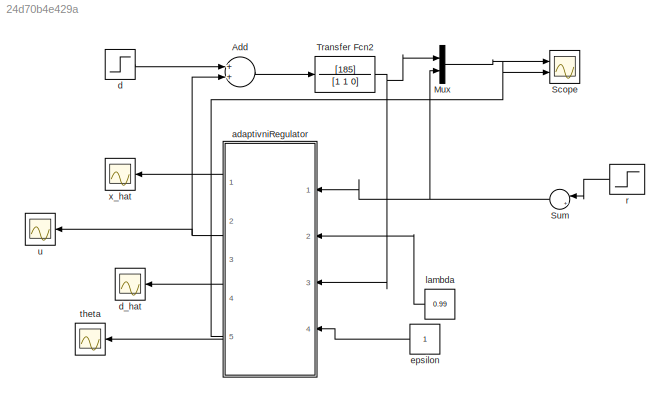
MODEL slx_24d70b4e429a
KIND model
BLOCK [Sum] Add
  InputSameDT = off
  OutDataTypeStr = Inherit: Inherit via internal rule
  Ports = [2, 1]
  SaturateOnIntegerOverflow = off
BLOCK [Mux] Mux
  DisplayOption = bar
  Inputs = 2
  Ports = [2, 1]
BLOCK [Scope] Scope
  DataFormat = StructureWithTime
  Decimation = 1
  Floating = off
  Grid = on
  LimitDataPoints = off
  MaxDataPoints = 5000
  NumInputPorts = 2
  Ports = [2]
  SampleInput = off
  SampleTime = -1
  SaveName = ScopeData1
  SaveToWorkspace = off
  ShowLegends = off
  TickLabels = OneTimeTick
  TimeRange = auto
  YMax = 160.4897~5
  YMin = -171.55541~-5
  ZoomMode = on
BLOCK [Sum] Sum
  IconShape = round
  InputSameDT = off
  Inputs = |++
  OutDataTypeStr = Inherit: Inherit via internal rule
  Ports = [2, 1]
  SaturateOnIntegerOverflow = off
BLOCK [TransferFcn] Transfer Fcn2
  Denominator = [1 1 0]
  Numerator = [185]
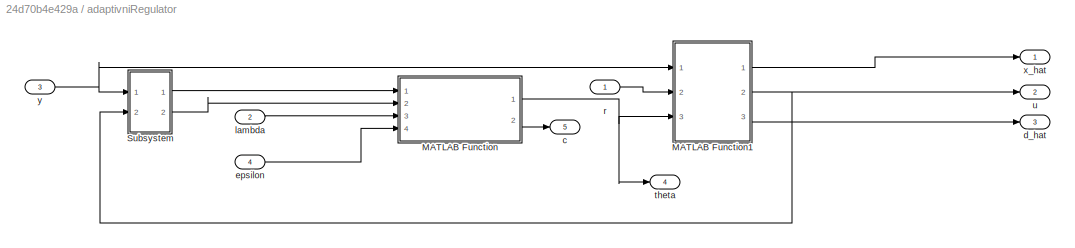
BLOCK [SubSystem] adaptivniRegulator
  Ports = [4, 5]
  RequestExecContextInheritance = off
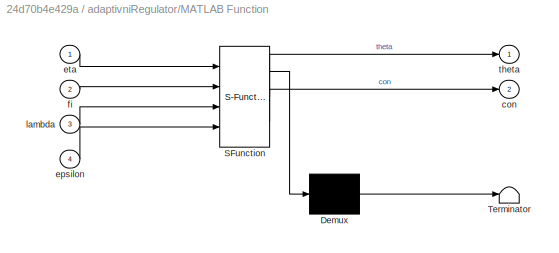
BLOCK [SubSystem] adaptivniRegulator/MATLAB Function
  ErrorFcn = Stateflow.Translate.translate
  PermitHierarchicalResolution = ParametersOnly
  Ports = [4, 2]
  RequestExecContextInheritance = off
  SFBlockType = MATLAB Function
  TreatAsAtomicUnit = on
BLOCK [Demux] adaptivniRegulator/MATLAB Function/ Demux 
  Outputs = 1
  Ports = [1, 1]
BLOCK [S-Function] adaptivniRegulator/MATLAB Function/ SFunction 
  EnableBusSupport = on
  FunctionName = sf_sfun
  PortCounts = [4 3]
  Ports = [4, 3]
  SFunctionDeploymentMode = off
  Tag = Stateflow S-Function homework6model_2013b 2
BLOCK [Terminator] adaptivniRegulator/MATLAB Function/ Terminator 
BLOCK [Outport] adaptivniRegulator/MATLAB Function/con
  IconDisplay = Port number
  Port = 2
BLOCK [Inport] adaptivniRegulator/MATLAB Function/epsilon
  IconDisplay = Port number
  Port = 4
BLOCK [Inport] adaptivniRegulator/MATLAB Function/eta
  IconDisplay = Port number
BLOCK [Inport] adaptivniRegulator/MATLAB Function/fi
  IconDisplay = Port number
  Port = 2
BLOCK [Inport] adaptivniRegulator/MATLAB Function/lambda
  IconDisplay = Port number
  Port = 3
BLOCK [Outport] adaptivniRegulator/MATLAB Function/theta
  IconDisplay = Port number
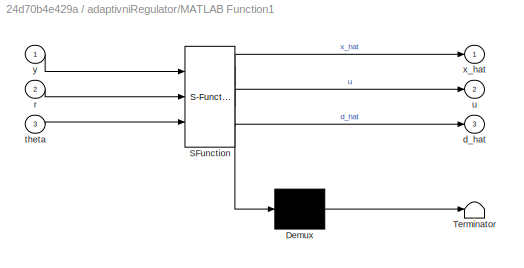
BLOCK [SubSystem] adaptivniRegulator/MATLAB Function1
  ErrorFcn = Stateflow.Translate.translate
  PermitHierarchicalResolution = ParametersOnly
  Ports = [3, 3]
  RequestExecContextInheritance = off
  SFBlockType = MATLAB Function
  TreatAsAtomicUnit = on
BLOCK [Demux] adaptivniRegulator/MATLAB Function1/ Demux 
  Outputs = 1
  Ports = [1, 1]
BLOCK [S-Function] adaptivniRegulator/MATLAB Function1/ SFunction 
  EnableBusSupport = on
  FunctionName = sf_sfun
  Parameters = T
  PortCounts = [3 4]
  Ports = [3, 4]
  SFunctionDeploymentMode = off
  Tag = Stateflow S-Function homework6model_2013b 1
BLOCK [Terminator] adaptivniRegulator/MATLAB Function1/ Terminator 
BLOCK [Outport] adaptivniRegulator/MATLAB Function1/d_hat
  IconDisplay = Port number
  Port = 3
BLOCK [Inport] adaptivniRegulator/MATLAB Function1/r
  IconDisplay = Port number
  Port = 2
BLOCK [Inport] adaptivniRegulator/MATLAB Function1/theta
  IconDisplay = Port number
  Port = 3
BLOCK [Outport] adaptivniRegulator/MATLAB Function1/u
  IconDisplay = Port number
  Port = 2
BLOCK [Outport] adaptivniRegulator/MATLAB Function1/x_hat
  IconDisplay = Port number
BLOCK [Inport] adaptivniRegulator/MATLAB Function1/y
  IconDisplay = Port number
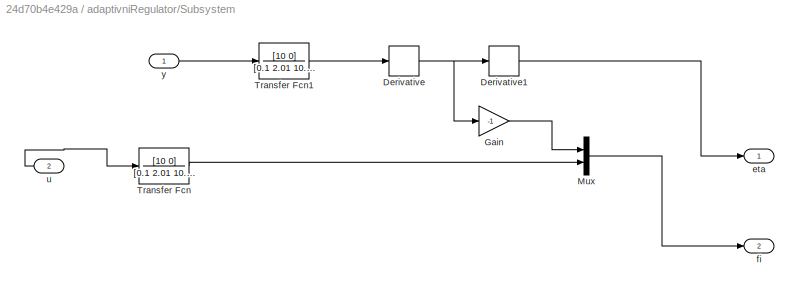
BLOCK [SubSystem] adaptivniRegulator/Subsystem
  Ports = [2, 2]
  RequestExecContextInheritance = off
BLOCK [Derivative] adaptivniRegulator/Subsystem/Derivative
BLOCK [Derivative] adaptivniRegulator/Subsystem/Derivative1
BLOCK [Gain] adaptivniRegulator/Subsystem/Gain
  Gain = -1
  OutDataTypeStr = Inherit: Inherit via internal rule
  ParamDataTypeStr = Inherit: Inherit via internal rule
  SaturateOnIntegerOverflow = off
BLOCK [Mux] adaptivniRegulator/Subsystem/Mux
  DisplayOption = bar
  Inputs = 2
  Ports = [2, 1]
BLOCK [TransferFcn] adaptivniRegulator/Subsystem/Transfer Fcn
  Denominator = [0.1 2.01 10.2 1]
  Numerator = [10 0]
BLOCK [TransferFcn] adaptivniRegulator/Subsystem/Transfer Fcn1
  Denominator = [0.1 2.01 10.2 1]
  Numerator = [10 0]
BLOCK [Outport] adaptivniRegulator/Subsystem/eta
  IconDisplay = Port number
BLOCK [Outport] adaptivniRegulator/Subsystem/fi
  IconDisplay = Port number
  Port = 2
BLOCK [Inport] adaptivniRegulator/Subsystem/u
  IconDisplay = Port number
  Port = 2
BLOCK [Inport] adaptivniRegulator/Subsystem/y
  IconDisplay = Port number
BLOCK [Outport] adaptivniRegulator/c
  IconDisplay = Port number
  Port = 5
BLOCK [Outport] adaptivniRegulator/d_hat
  IconDisplay = Port number
  Port = 3
BLOCK [Inport] adaptivniRegulator/epsilon
  IconDisplay = Port number
  Port = 4
BLOCK [Inport] adaptivniRegulator/lambda
  IconDisplay = Port number
  Port = 2
BLOCK [Inport] adaptivniRegulator/r
  IconDisplay = Port number
BLOCK [Outport] adaptivniRegulator/theta
  IconDisplay = Port number
  Port = 4
BLOCK [Outport] adaptivniRegulator/u
  IconDisplay = Port number
  Port = 2
BLOCK [Outport] adaptivniRegulator/x_hat
  IconDisplay = Port number
BLOCK [Inport] adaptivniRegulator/y
  IconDisplay = Port number
  Port = 3
BLOCK [Step] d
  After = 0.5
  SampleTime = 0
  Time = 20
BLOCK [Scope] d_hat
  DataFormat = StructureWithTime
  Decimation = 1
  Floating = off
  Grid = on
  LimitDataPoints = off
  MaxDataPoints = 5000
  NumInputPorts = 1
  Ports = [1]
  SampleInput = off
  SampleTime = -1
  SaveName = ScopeData1
  SaveToWorkspace = off
  ShowLegends = off
  TickLabels = OneTimeTick
  TimeRange = auto
  YMax = 99.18041
  YMin = -11.03401
  ZoomMode = on
BLOCK [Constant] epsilon
BLOCK [Constant] lambda
  Value = 0.99
BLOCK [Step] r
  After = 100
  SampleTime = 0
  Time = 0
BLOCK [Scope] theta
  DataFormat = StructureWithTime
  Decimation = 1
  Floating = off
  Grid = on
  LimitDataPoints = off
  MaxDataPoints = 5000
  NumInputPorts = 1
  Ports = [1]
  SampleInput = off
  SampleTime = -1
  SaveName = ScopeData1
  SaveToWorkspace = off
  ShowLegends = off
  TickLabels = OneTimeTick
  TimeRange = auto
  YMax = 211.13688
  YMin = -50.24284
  ZoomMode = on
BLOCK [Scope] u
  DataFormat = StructureWithTime
  Decimation = 1
  Floating = off
  Grid = on
  LimitDataPoints = off
  MaxDataPoints = 5000
  NumInputPorts = 1
  Ports = [1]
  SampleInput = off
  SampleTime = -1
  SaveName = ScopeData2
  SaveToWorkspace = off
  ShowLegends = off
  TickLabels = OneTimeTick
  TimeRange = auto
  YMax = 1.25
  YMin = -1.25
  ZoomMode = on
BLOCK [Scope] x_hat
  DataFormat = StructureWithTime
  Decimation = 1
  Floating = off
  Grid = on
  LimitDataPoints = off
  MaxDataPoints = 5000
  NumInputPorts = 1
  Ports = [1]
  SampleInput = off
  SampleTime = -1
  SaveName = ScopeData2
  SaveToWorkspace = off
  ShowLegends = off
  TickLabels = OneTimeTick
  TimeRange = auto
  YMax = 1.25
  YMin = -1.25
  ZoomMode = on
LINE Add:1 -> Transfer Fcn2:1
LINE Mux:1 -> Scope:1
NET Sum:1 -> Mux:2, adaptivniRegulator:1
NET Transfer Fcn2:1 -> Mux:1, adaptivniRegulator:3
LINE adaptivniRegulator/MATLAB Function1:1 -> adaptivniRegulator/x_hat:1
NET adaptivniRegulator/MATLAB Function1:2 -> adaptivniRegulator/Subsystem:2, adaptivniRegulator/u:1
LINE adaptivniRegulator/MATLAB Function1:3 -> adaptivniRegulator/d_hat:1
NET adaptivniRegulator/MATLAB Function:1 -> adaptivniRegulator/MATLAB Function1:3, adaptivniRegulator/theta:1
LINE adaptivniRegulator/MATLAB Function:2 -> adaptivniRegulator/c:1
LINE adaptivniRegulator/Subsystem/Derivative1:1 -> adaptivniRegulator/Subsystem/eta:1
NET adaptivniRegulator/Subsystem/Derivative:1 -> adaptivniRegulator/Subsystem/Derivative1:1, adaptivniRegulator/Subsystem/Gain:1
LINE adaptivniRegulator/Subsystem/Gain:1 -> adaptivniRegulator/Subsystem/Mux:1
LINE adaptivniRegulator/Subsystem/Mux:1 -> adaptivniRegulator/Subsystem/fi:1
LINE adaptivniRegulator/Subsystem/Transfer Fcn1:1 -> adaptivniRegulator/Subsystem/Derivative:1
LINE adaptivniRegulator/Subsystem/Transfer Fcn:1 -> adaptivniRegulator/Subsystem/Mux:2
LINE adaptivniRegulator/Subsystem/u:1 -> adaptivniRegulator/Subsystem/Transfer Fcn:1
LINE adaptivniRegulator/Subsystem/y:1 -> adaptivniRegulator/Subsystem/Transfer Fcn1:1
LINE adaptivniRegulator/Subsystem:1 -> adaptivniRegulator/MATLAB Function:1
LINE adaptivniRegulator/Subsystem:2 -> adaptivniRegulator/MATLAB Function:2
LINE adaptivniRegulator/epsilon:1 -> adaptivniRegulator/MATLAB Function:4
LINE adaptivniRegulator/lambda:1 -> adaptivniRegulator/MATLAB Function:3
LINE adaptivniRegulator/r:1 -> adaptivniRegulator/MATLAB Function1:2
NET adaptivniRegulator/y:1 -> adaptivniRegulator/MATLAB Function1:1, adaptivniRegulator/Subsystem:1
LINE adaptivniRegulator:1 -> x_hat:1
NET adaptivniRegulator:2 -> Add:2, u:1
LINE adaptivniRegulator:3 -> d_hat:1
LINE adaptivniRegulator:4 -> theta:1
LINE adaptivniRegulator:5 -> Scope:2
LINE d:1 -> Add:1
LINE epsilon:1 -> adaptivniRegulator:4
LINE lambda:1 -> adaptivniRegulator:2
LINE r:1 -> Sum:1
note: NET lines group one-source signal fan-out (src -> all destinations, sorted); 1:1 wires keep LINE
